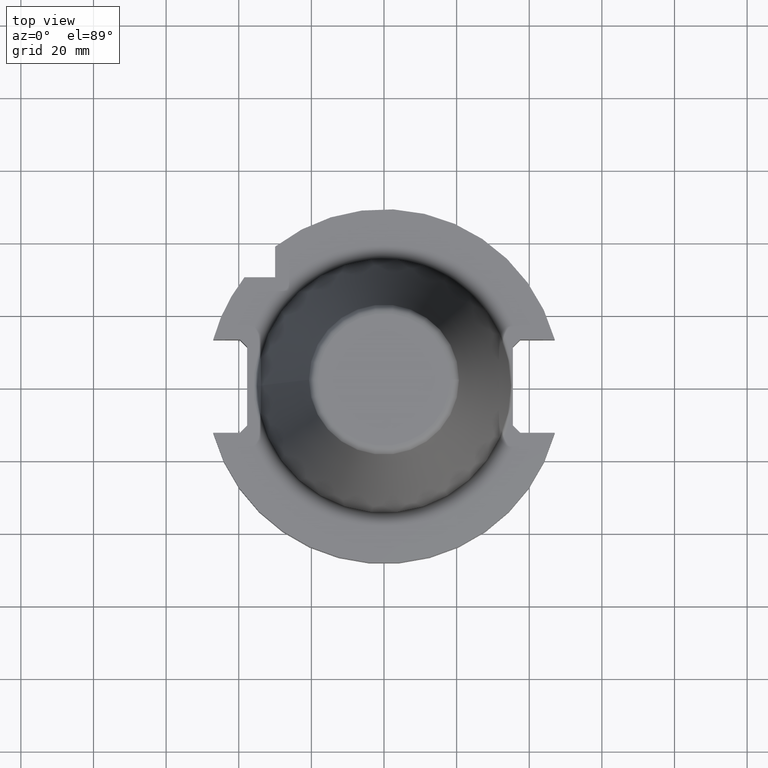
[diagram: clean part render]
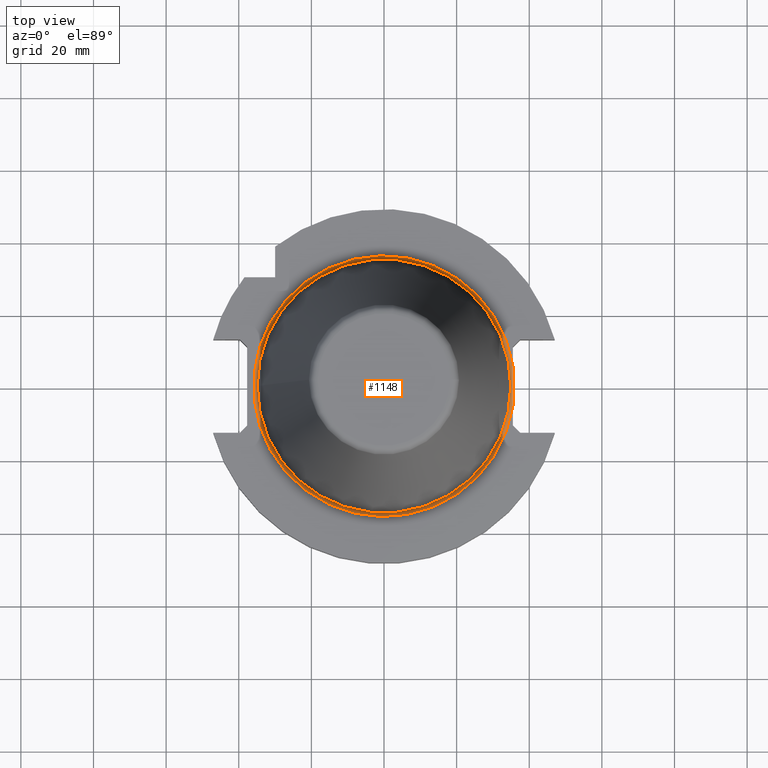
[diagram: same view with one face highlighted and labeled with its STEP entity id]
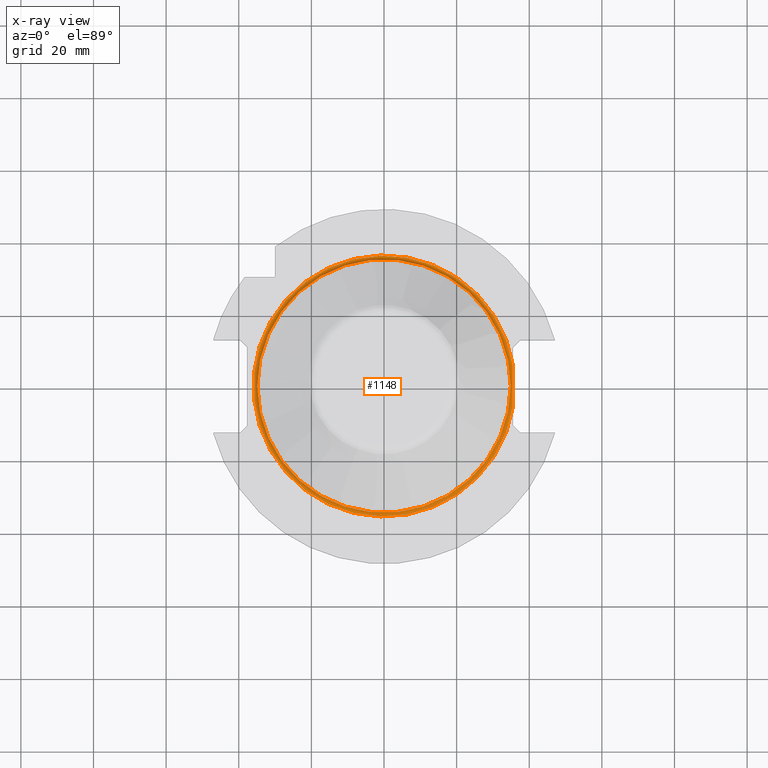
[diagram: x-ray of the same camera — body ghosted, the highlighted face saturated]
A machine part, top view. The second image highlights one B-rep face of the part: STEP entity #1148.
The next image is the same camera in x-ray: the body ghosted, the highlighted face saturated — about 0% of this face is hidden behind the body in this view.
In plain terms, the highlighted toroidal blend (fillet) surface has major radius 35.925 mm and minor (blend) radius 1 mm.
Its self-contained STEP definition (entity closure, byte-faithful):
#195=B_SPLINE_CURVE_WITH_KNOTS('',3,(#1743,#1744,#1745,#1746,#1747),
 .UNSPECIFIED.,.F.,.F.,(4,1,4),(0.0360773192119052,0.0415766521982248,0.0470759851845445),
 .UNSPECIFIED.);
#250=TOROIDAL_SURFACE('',#1243,35.925,1.);
#283=ORIENTED_EDGE('',*,*,#589,.F.);
#284=ORIENTED_EDGE('',*,*,#609,.F.);
#285=ORIENTED_EDGE('',*,*,#610,.F.);
#589=EDGE_CURVE('',#756,#756,#873,.T.);
#609=EDGE_CURVE('',#771,#772,#195,.T.);
#610=EDGE_CURVE('',#772,#771,#881,.F.);
#756=VERTEX_POINT('',#1690);
#771=VERTEX_POINT('',#1748);
#772=VERTEX_POINT('',#1749);
#873=CIRCLE('',#1229,34.925);
#881=CIRCLE('',#1244,35.925);
#939=EDGE_LOOP('',(#283));
#940=EDGE_LOOP('',(#284,#285));
#1029=FACE_BOUND('',#939,.T.);
#1030=FACE_BOUND('',#940,.T.);
#1148=ADVANCED_FACE('',(#1029,#1030),#250,.F.);
#1229=AXIS2_PLACEMENT_3D('',#1689,#1362,#1363);
#1243=AXIS2_PLACEMENT_3D('',#1742,#1398,#1399);
#1244=AXIS2_PLACEMENT_3D('',#1750,#1400,#1401);
#1362=DIRECTION('',(0.,0.,1.));
#1363=DIRECTION('',(1.,0.,0.));
#1398=DIRECTION('',(0.,0.,1.));
#1399=DIRECTION('',(1.,0.,0.));
#1400=DIRECTION('',(0.,0.,1.));
#1401=DIRECTION('',(1.,0.,0.));
#1689=CARTESIAN_POINT('',(0.,0.,-2.2));
#1690=CARTESIAN_POINT('',(34.925,0.,-2.2));
#1742=CARTESIAN_POINT('',(0.,0.,-2.2));
#1743=CARTESIAN_POINT('',(35.5,5.50959390518014,-3.2));
#1744=CARTESIAN_POINT('',(35.5,3.66898257406748,-3.2));
#1745=CARTESIAN_POINT('',(35.5,-0.0183630305919899,-3.01038828718709));
#1746=CARTESIAN_POINT('',(35.5,-3.67608924684522,-3.2));
#1747=CARTESIAN_POINT('',(35.5,-5.50959390518014,-3.2));
#1748=CARTESIAN_POINT('',(35.5,5.50959390518013,-3.2));
#1749=CARTESIAN_POINT('',(35.5,-5.50959390518013,-3.2));
#1750=CARTESIAN_POINT('',(0.,0.,-3.2));